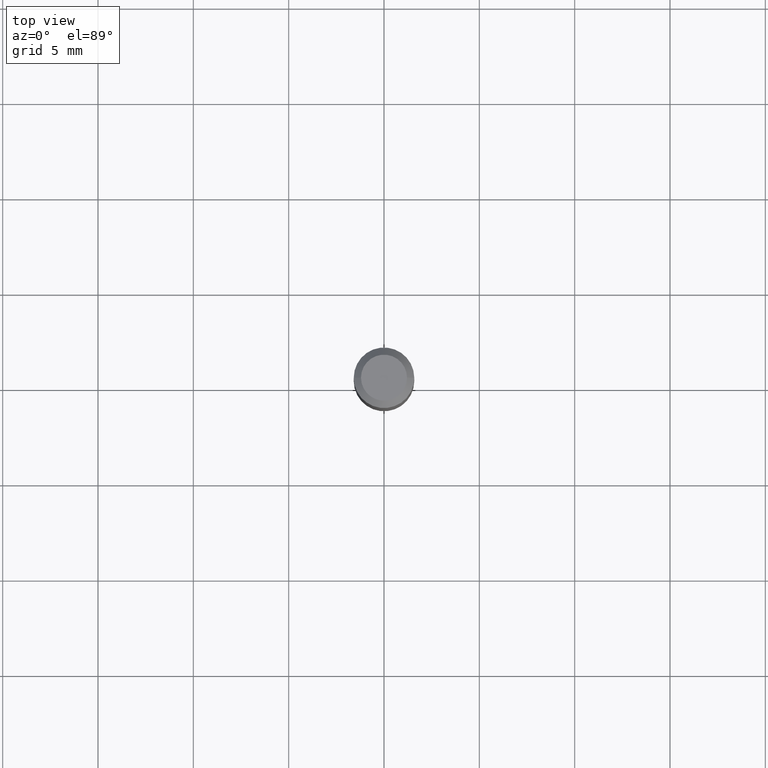
[diagram: clean part render]
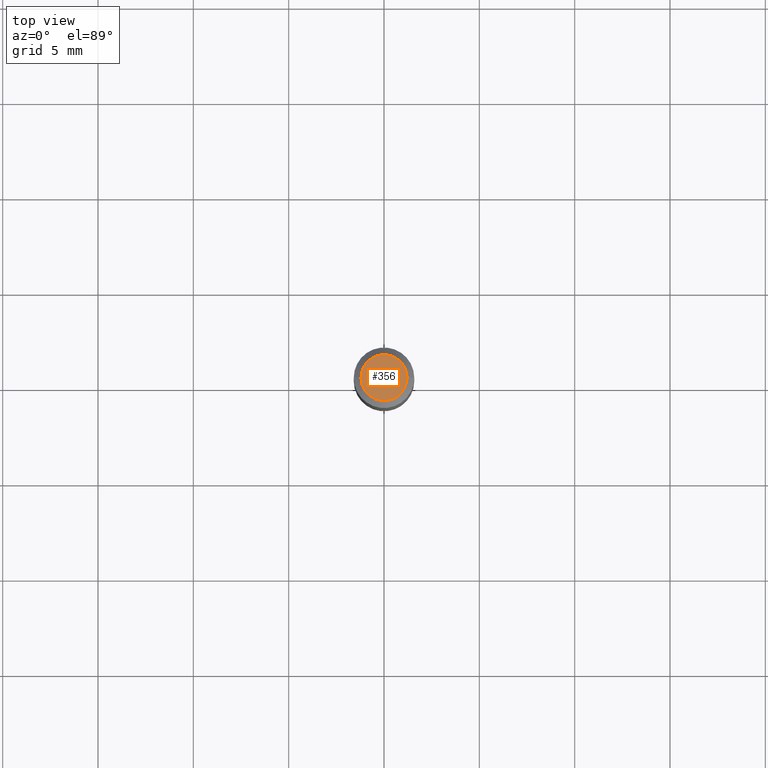
[diagram: same view with one face highlighted and labeled with its STEP entity id]
A machine part, top view. The second image highlights one B-rep face of the part: STEP entity #356.
In plain terms, the highlighted planar face has unit normal (0, -0, -1).
Its self-contained STEP definition (entity closure, byte-faithful):
#15 = DIRECTION ( 'NONE',  ( -2.445468806185136597E-29, 3.491481338843145583E-15, 1.000000000000000000 ) ) ;
#27 = EDGE_CURVE ( 'NONE', #313, #452, #184, .T. ) ;
#36 = DIRECTION ( 'NONE',  ( 2.438088387897960049E-29, -3.491481338843145188E-15, -1.000000000000000000 ) ) ;
#43 = AXIS2_PLACEMENT_3D ( 'NONE', #140, #215, #108 ) ;
#108 = DIRECTION ( 'NONE',  ( 1.000000000000000000, -6.982962677686267499E-15, 4.884662768193073002E-29 ) ) ;
#140 = CARTESIAN_POINT ( 'NONE',  ( -2.427605901612193195E-45, 3.465977845273231710E-31, 9.926955091278351202E-17 ) ) ;
#145 = EDGE_CURVE ( 'NONE', #452, #313, #170, .T. ) ;
#149 = CARTESIAN_POINT ( 'NONE',  ( 3.316907271900976096E-16, 0.04749999999999999362, -1.162105881386576343E-16 ) ) ;
#153 = DIRECTION ( 'NONE',  ( 1.000000000000000000, -6.982962677686267499E-15, 4.884662768193073002E-29 ) ) ;
#164 = DIRECTION ( 'NONE',  ( -1.000000000000000000, 6.982962677686265922E-15, -4.876176775795935793E-29 ) ) ;
#170 = CIRCLE ( 'NONE', #432, 0.04749999999999999362 ) ;
#184 = CIRCLE ( 'NONE', #43, 0.04749999999999999362 ) ;
#185 = CARTESIAN_POINT ( 'NONE',  ( -0.04749999999999999362, 3.578768372314212971E-16, 9.926955091278110846E-17 ) ) ;
#204 = ORIENTED_EDGE ( 'NONE', *, *, #27, .T. ) ;
#206 = AXIS2_PLACEMENT_3D ( 'NONE', #149, #36, #164 ) ;
#215 = DIRECTION ( 'NONE',  ( -2.445468806185136597E-29, 3.491481338843145583E-15, 1.000000000000000000 ) ) ;
#222 = FACE_OUTER_BOUND ( 'NONE', #348, .T. ) ;
#302 = PLANE ( 'NONE',  #206 ) ;
#313 = VERTEX_POINT ( 'NONE', #185 ) ;
#342 = CARTESIAN_POINT ( 'NONE',  ( -2.427605901612193195E-45, 3.465977845273231710E-31, 9.926955091278351202E-17 ) ) ;
#348 = EDGE_LOOP ( 'NONE', ( #204, #405 ) ) ;
#356 = ADVANCED_FACE ( 'NONE', ( #222 ), #302, .F. ) ;
#378 = CARTESIAN_POINT ( 'NONE',  ( 0.04749999999999999362, -4.035134999187576651E-16, 9.926955091278610047E-17 ) ) ;
#405 = ORIENTED_EDGE ( 'NONE', *, *, #145, .T. ) ;
#432 = AXIS2_PLACEMENT_3D ( 'NONE', #342, #15, #153 ) ;
#452 = VERTEX_POINT ( 'NONE', #378 ) ;